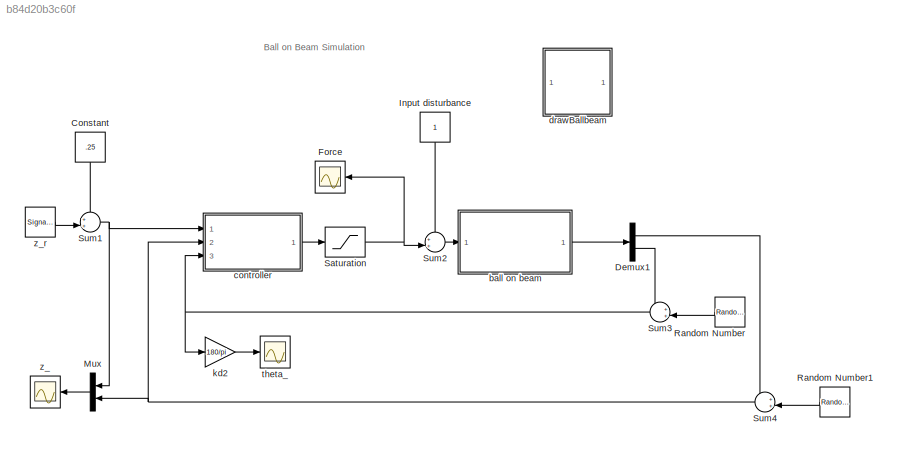
MODEL slx_b84d20b3c60f
KIND model
CONFIG AbsTol = auto
CONFIG EnableMultiTasking = on
CONFIG FixedStep = auto
CONFIG InitFcn = addpath ./..\n\n\n
CONFIG MaxStep = auto
CONFIG MinStep = auto
CONFIG RelTol = 1e-3
CONFIG SampleTimeConstraint = Unconstrained
CONFIG Solver = ode45
CONFIG SolverName = ode45
CONFIG StartTime = 0.0
CONFIG StopTime = P.t_end
BLOCK [Constant] Constant
  Value = .25
BLOCK [Demux] Demux1
  DisplayOption = bar
  Outputs = 2
  Ports = [1, 2]
BLOCK [Scope] Force
  NumInputPorts = 1
  Ports = [1]
  ScopeSpecificationString = Simulink.scopes.TimeScopeBlockCfg('CurrentConfiguration', extmgr.ConfigurationSet(extmgr.Configuration('Core','General UI',true),extmgr.Configuration('Core','Source UI',true),extmgr.Configuration('Sources','WiredSimulink',true,'DataLoggingSaveFormat','StructureWithTime','DataLoggingLimitDataPoints',true,'DataLoggingDecimation','1','DataLoggingDecimateData',true,'DataLoggingVariableName','ScopeData...<+1771ch>
BLOCK [Constant] Input disturbance
BLOCK [Mux] Mux
  DisplayOption = bar
  Inputs = 2
  Ports = [2, 1]
BLOCK [RandomNumber] Random Number
  SampleTime = 0.1
  Variance = .001^2
BLOCK [RandomNumber] Random Number1
  SampleTime = 0.1
  Variance = .001^2
BLOCK [Saturate] Saturation
  InputPortMap = u0
  LowerLimit = -P.Fmax
  Ports = [1, 1]
  UpperLimit = P.Fmax
BLOCK [Sum] Sum1
  IconShape = round
  InputSameDT = off
  Inputs = ++|
  OutDataTypeStr = Inherit: Inherit via internal rule
  Ports = [2, 1]
  SaturateOnIntegerOverflow = off
BLOCK [Sum] Sum2
  IconShape = round
  InputSameDT = off
  Inputs = ++|
  OutDataTypeStr = Inherit: Inherit via internal rule
  Ports = [2, 1]
  SaturateOnIntegerOverflow = off
BLOCK [Sum] Sum3
  IconShape = round
  InputSameDT = off
  Inputs = ++|
  OutDataTypeStr = Inherit: Inherit via internal rule
  Ports = [2, 1]
  SaturateOnIntegerOverflow = off
BLOCK [Sum] Sum4
  IconShape = round
  InputSameDT = off
  Inputs = ++|
  OutDataTypeStr = Inherit: Inherit via internal rule
  Ports = [2, 1]
  SaturateOnIntegerOverflow = off
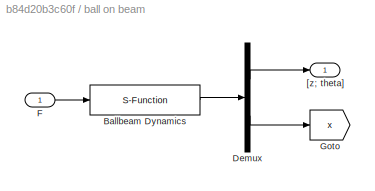
BLOCK [SubSystem] ball on beam
  Ports = [1, 1]
  RequestExecContextInheritance = off
  Variant = off
BLOCK [S-Function] ball on beam/Ballbeam Dynamics
  EnableBusSupport = off
  FunctionName = ballbeam_dynamics
  Parameters = P
  Ports = [1, 1]
  SFcnIsStateOwnerBlock = off
  SFunctionDeploymentMode = off
BLOCK [Demux] ball on beam/Demux
  DisplayOption = bar
  Outputs = [2;4]
  Ports = [1, 2]
BLOCK [Inport] ball on beam/F
  IconDisplay = Port number
BLOCK [Goto] ball on beam/Goto
  GotoTag = x
  TagVisibility = global
BLOCK [Outport] ball on beam/[z; theta]
  IconDisplay = Port number
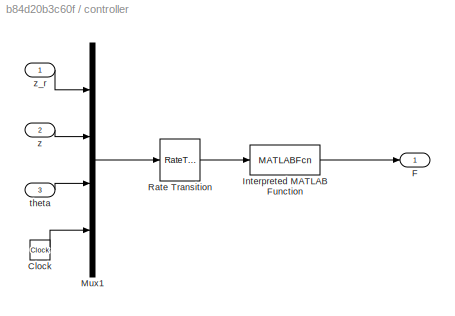
BLOCK [SubSystem] controller
  Ports = [3, 1]
  RequestExecContextInheritance = off
  Variant = off
BLOCK [Clock] controller/Clock
BLOCK [Outport] controller/F
  IconDisplay = Port number
BLOCK [MATLABFcn] controller/Interpreted MATLAB Function
  MATLABFcn = ballbeam_ctrl(u,P)
  OutputDimensions = 1
  Ports = [1, 1]
BLOCK [Mux] controller/Mux1
  DisplayOption = bar
  Ports = [4, 1]
BLOCK [RateTransition] controller/Rate Transition
  OutPortSampleTime = P.Ts
BLOCK [Inport] controller/theta
  IconDisplay = Port number
  Port = 3
BLOCK [Inport] controller/z
  IconDisplay = Port number
  Port = 2
BLOCK [Inport] controller/z_r
  IconDisplay = Port number
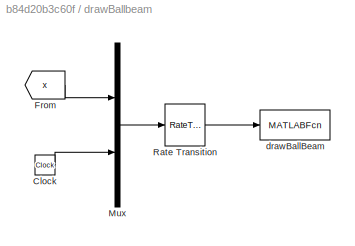
BLOCK [SubSystem] drawBallbeam
  Ports = []
  RequestExecContextInheritance = off
  Variant = off
BLOCK [Clock] drawBallbeam/Clock
BLOCK [From] drawBallbeam/From
  GotoTag = x
  TagVisibility = global
BLOCK [Mux] drawBallbeam/Mux
  DisplayOption = bar
  Inputs = 2
  Ports = [2, 1]
BLOCK [RateTransition] drawBallbeam/Rate Transition
  OutPortSampleTime = P.t_plot
BLOCK [MATLABFcn] drawBallbeam/drawBallBeam
  MATLABFcn = ballbeam_animation(u,P)
  OutputDimensions = 0
  Ports = [1]
BLOCK [Gain] kd2
  Gain = 180/pi
  OutDataTypeStr = Inherit: Inherit via internal rule
  ParamDataTypeStr = Inherit: Inherit via internal rule
  SaturateOnIntegerOverflow = off
BLOCK [Scope] theta_
  NumInputPorts = 1
  Ports = [1]
  ScopeSpecificationString = Simulink.scopes.TimeScopeBlockCfg('CurrentConfiguration', extmgr.ConfigurationSet(extmgr.Configuration('Core','General UI',true),extmgr.Configuration('Core','Source UI',true),extmgr.Configuration('Sources','WiredSimulink',true,'DataLoggingSaveFormat','StructureWithTime','DataLoggingLimitDataPoints',true,'DataLoggingDecimation','1','DataLoggingDecimateData',true,'DataLoggingVariableName','ScopeData...<+1799ch>
BLOCK [Scope] z_
  NumInputPorts = 1
  Ports = [1]
  ScopeSpecificationString = Simulink.scopes.TimeScopeBlockCfg('CurrentConfiguration', extmgr.ConfigurationSet(extmgr.Configuration('Core','General UI',true),extmgr.Configuration('Core','Source UI',true),extmgr.Configuration('Sources','WiredSimulink',true,'DataLoggingVariableName','ScopeData3','DataLoggingSaveFormat','StructureWithTime','DataLoggingLimitDataPoints',true,'DataLoggingDecimation','1','DataLoggingDecimateData',tr...<+1807ch>
BLOCK [SignalGenerator] z_r
  Amplitude = 0.125
  Frequency = .04
  Ports = [0, 1]
  WaveForm = square
ANNOTATION (root): Ball on Beam Simulation
LINE Constant:1 -> Sum1:1
LINE Demux1:1 -> Sum4:1
LINE Demux1:2 -> Sum3:1
LINE Input disturbance:1 -> Sum2:1
LINE Mux:1 -> z_:1
LINE Random Number1:1 -> Sum4:2
LINE Random Number:1 -> Sum3:2
NET Saturation:1 -> Force:1, Sum2:2
NET Sum1:1 -> Mux:1, controller:1
LINE Sum2:1 -> ball on beam:1
NET Sum3:1 -> controller:3, kd2:1
NET Sum4:1 -> Mux:2, controller:2
LINE ball on beam/Ballbeam Dynamics:1 -> ball on beam/Demux:1
LINE ball on beam/Demux:1 -> ball on beam/[z; theta]:1
LINE ball on beam/Demux:2 -> ball on beam/Goto:1
LINE ball on beam/F:1 -> ball on beam/Ballbeam Dynamics:1
LINE ball on beam:1 -> Demux1:1
LINE controller/Clock:1 -> controller/Mux1:4
LINE controller/Interpreted MATLAB Function:1 -> controller/F:1
LINE controller/Mux1:1 -> controller/Rate Transition:1
LINE controller/Rate Transition:1 -> controller/Interpreted MATLAB Function:1
LINE controller/theta:1 -> controller/Mux1:3
LINE controller/z:1 -> controller/Mux1:2
LINE controller/z_r:1 -> controller/Mux1:1
LINE controller:1 -> Saturation:1
LINE drawBallbeam/Clock:1 -> drawBallbeam/Mux:2
LINE drawBallbeam/From:1 -> drawBallbeam/Mux:1
LINE drawBallbeam/Mux:1 -> drawBallbeam/Rate Transition:1
LINE drawBallbeam/Rate Transition:1 -> drawBallbeam/drawBallBeam:1
LINE kd2:1 -> theta_:1
LINE z_r:1 -> Sum1:2
note: NET lines group one-source signal fan-out (src -> all destinations, sorted); 1:1 wires keep LINE
